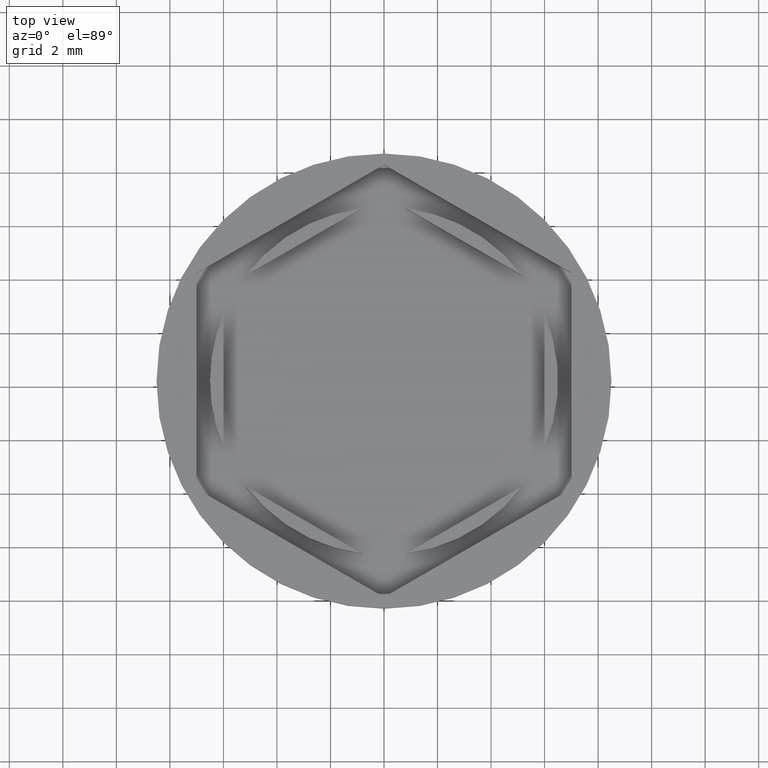
[diagram: clean part render]
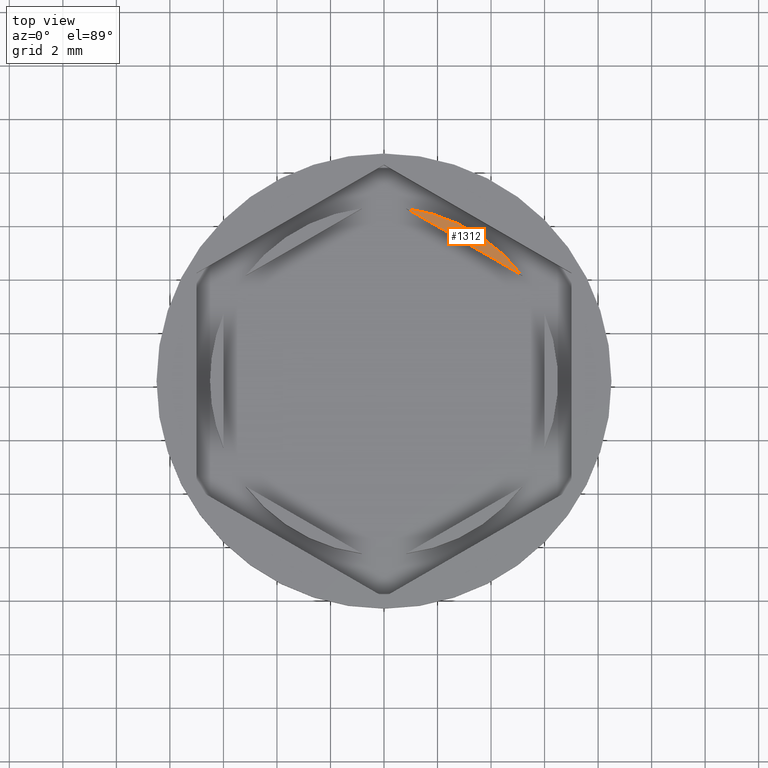
[diagram: same view with one face highlighted and labeled with its STEP entity id]
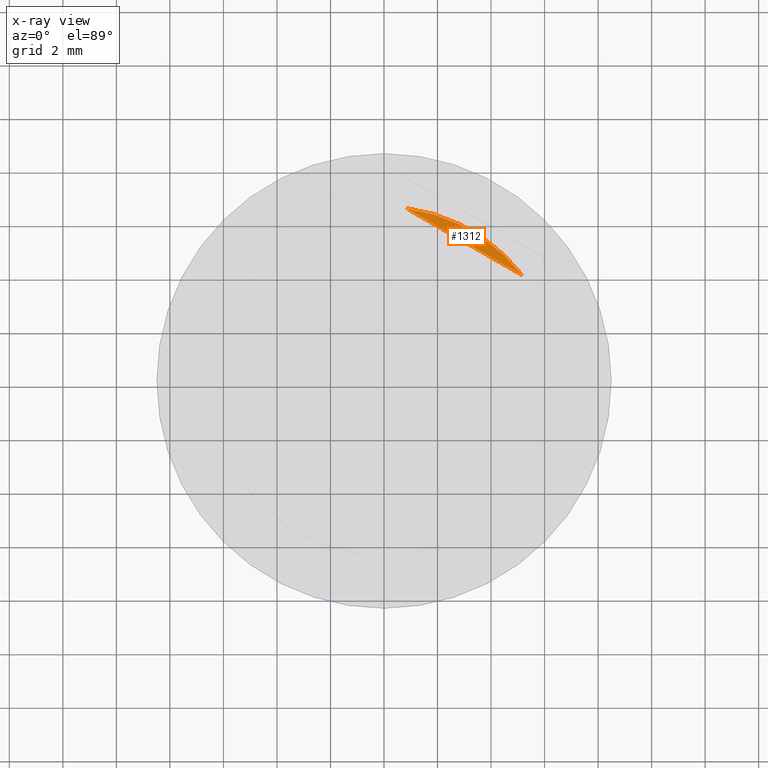
[diagram: x-ray of the same camera — body ghosted, the highlighted face saturated]
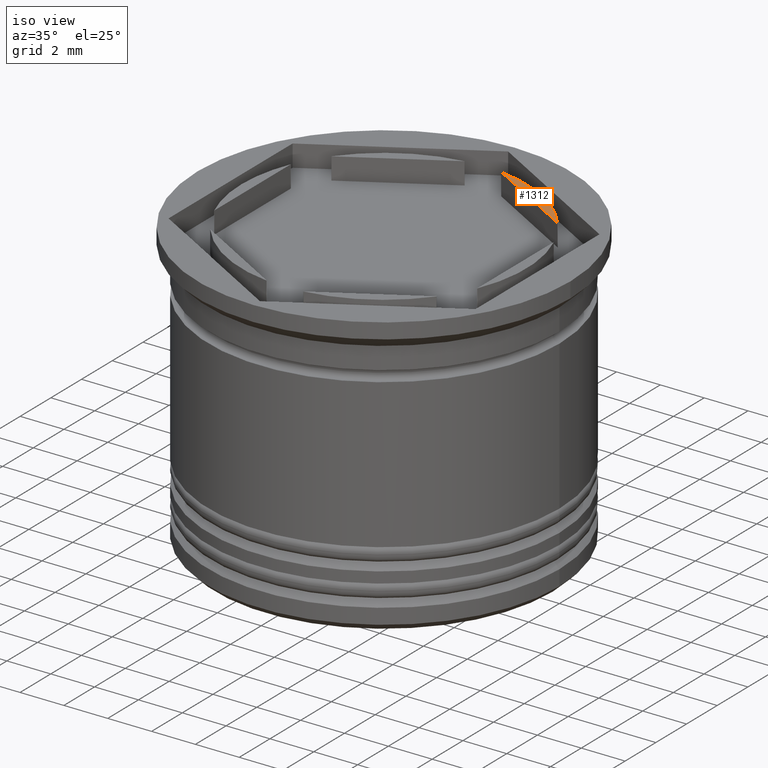
[diagram: same view with one face highlighted and labeled with its STEP entity id]
A machine part, top view. The second image highlights one B-rep face of the part: STEP entity #1312.
The next image is the same camera in x-ray: the body ghosted, the highlighted face saturated — about 0% of this face is hidden behind the body in this view.
A second angle (iso view) of the same face is appended — the face is thin or edge-on in the first view.
In plain terms, the highlighted planar face has unit normal (0, -0, 1).
Its self-contained STEP definition (entity closure, byte-faithful):
#57 = LINE ( 'NONE', #1912, #941 ) ;
#92 = DIRECTION ( 'NONE',  ( 1.000000000000000000, 0.000000000000000000, 0.000000000000000000 ) ) ;
#180 = EDGE_CURVE ( 'NONE', #1207, #369, #57, .T. ) ;
#369 = VERTEX_POINT ( 'NONE', #373 ) ;
#373 = CARTESIAN_POINT ( 'NONE',  ( 0.8349364905389025093, 6.446152422706632912, 0.000000000000000000 ) ) ;
#398 = CARTESIAN_POINT ( 'NONE',  ( 0.000000000000000000, 0.000000000000000000, 0.000000000000000000 ) ) ;
#625 = AXIS2_PLACEMENT_3D ( 'NONE', #398, #1482, #92 ) ;
#710 = PLANE ( 'NONE',  #976 ) ;
#854 = DIRECTION ( 'NONE',  ( -0.8660254037844388186, 0.4999999999999998335, 0.000000000000000000 ) ) ;
#888 = FACE_OUTER_BOUND ( 'NONE', #1147, .T. ) ;
#892 = ORIENTED_EDGE ( 'NONE', *, *, #1705, .T. ) ;
#941 = VECTOR ( 'NONE', #854, 999.9999999999998863 ) ;
#976 = AXIS2_PLACEMENT_3D ( 'NONE', #1183, #1939, #1025 ) ;
#1025 = DIRECTION ( 'NONE',  ( 1.000000000000000000, 0.000000000000000000, 0.000000000000000000 ) ) ;
#1147 = EDGE_LOOP ( 'NONE', ( #1656, #892 ) ) ;
#1183 = CARTESIAN_POINT ( 'NONE',  ( 0.000000000000000000, 0.000000000000000000, 0.000000000000000000 ) ) ;
#1207 = VERTEX_POINT ( 'NONE', #1441 ) ;
#1312 = ADVANCED_FACE ( 'NONE', ( #888 ), #710, .T. ) ;
#1441 = CARTESIAN_POINT ( 'NONE',  ( 5.165063509461095492, 3.946152422706634244, 0.000000000000000000 ) ) ;
#1482 = DIRECTION ( 'NONE',  ( -0.000000000000000000, -0.000000000000000000, 1.000000000000000000 ) ) ;
#1518 = CIRCLE ( 'NONE', #625, 6.500000000000000888 ) ;
#1656 = ORIENTED_EDGE ( 'NONE', *, *, #180, .F. ) ;
#1705 = EDGE_CURVE ( 'NONE', #1207, #369, #1518, .T. ) ;
#1912 = CARTESIAN_POINT ( 'NONE',  ( 2.999999999999998224, 5.196152422706632912, 0.000000000000000000 ) ) ;
#1939 = DIRECTION ( 'NONE',  ( 0.000000000000000000, -0.000000000000000000, 1.000000000000000000 ) ) ;